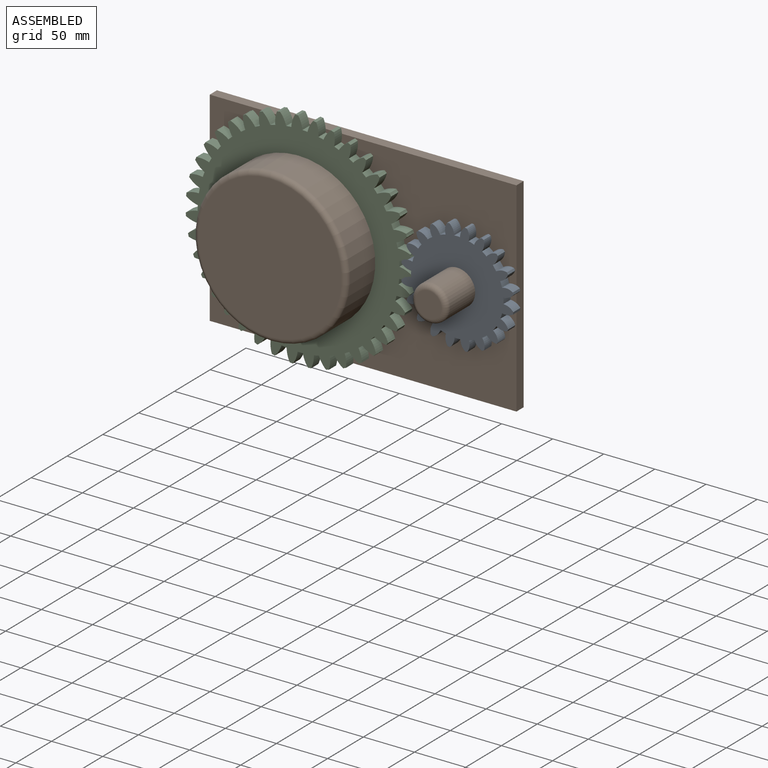
[diagram: assembled view]
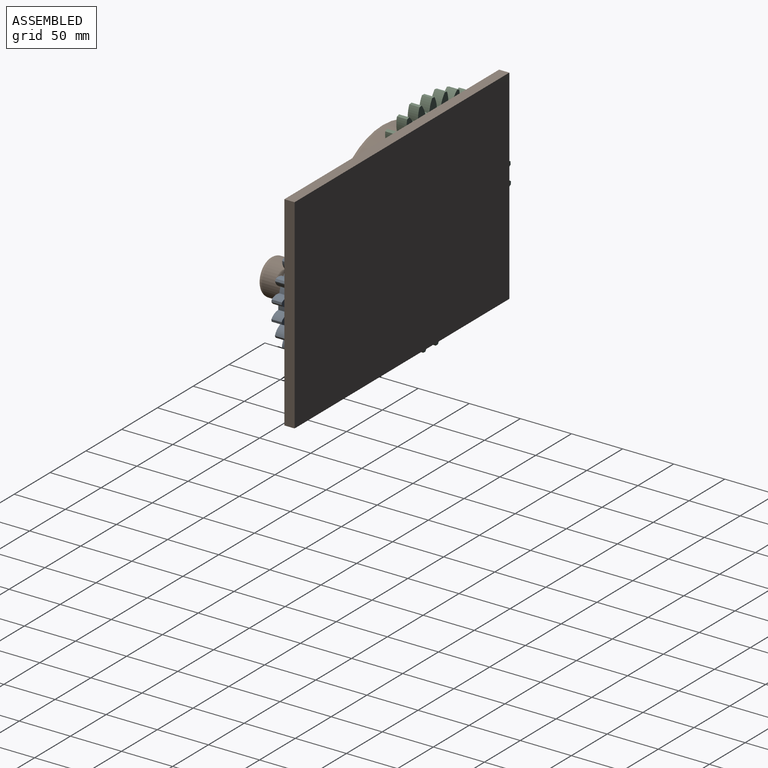
[diagram: assembled view, second angle]
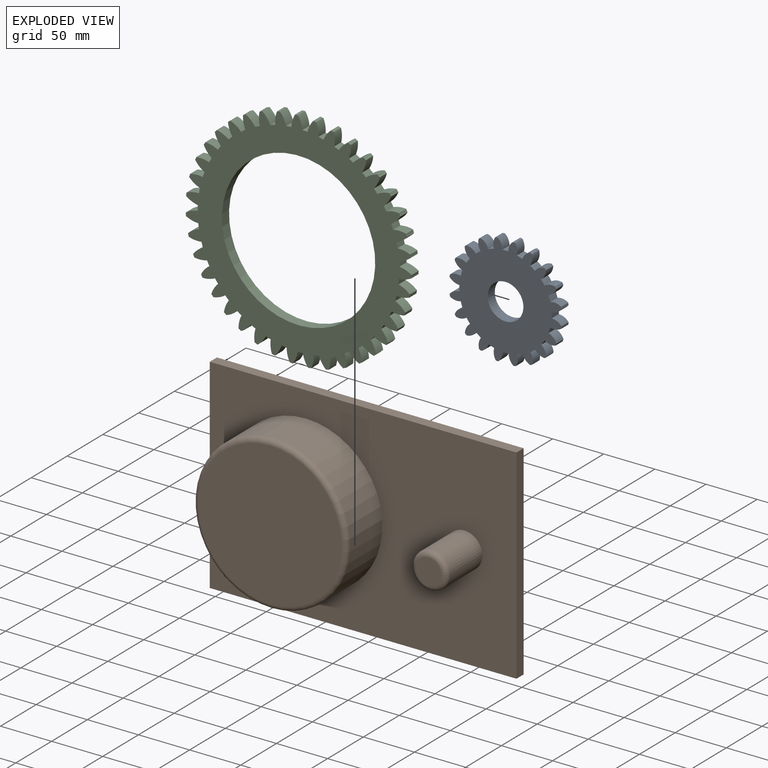
[diagram: exploded view]
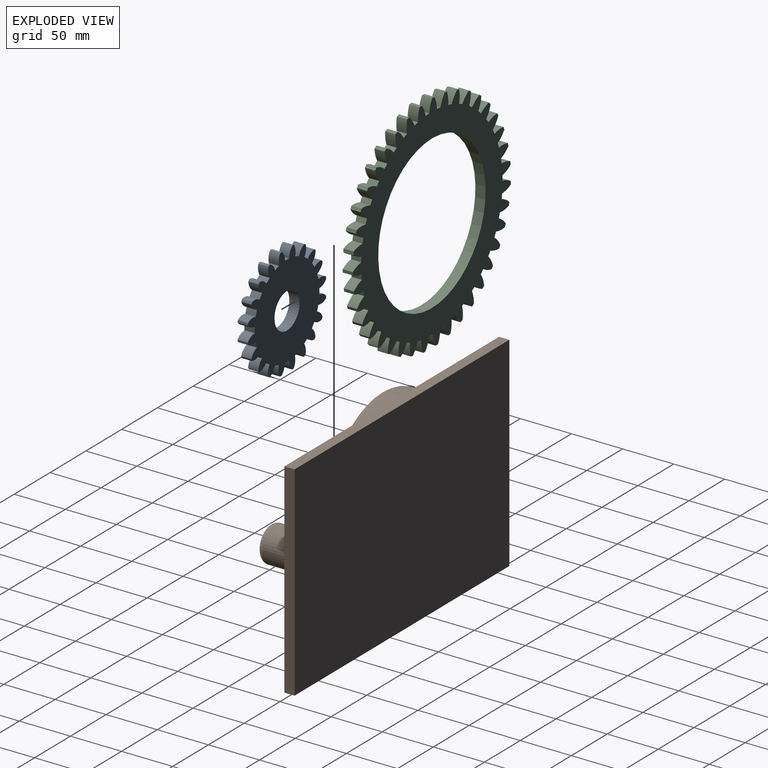
[diagram: exploded view, second angle]
ASSEMBLY  parts=3 mates=2
PART A: 123 faces, bbox 110.3x10x110.3 mm
  f0: cylinder r=45.23mm len=10mm, axis (0,1,0), area 56.7mm2, adj f24,f25,f26,f76
  f1: cylinder r=45.23mm len=10mm, axis (0,1,0), area 56.7mm2, adj f25,f26,f71,f75
  f2: cylinder r=45.23mm len=10mm, axis (0,1,0), area 56.7mm2, adj f25,f26,f66,f70
  f3: cylinder r=45.23mm len=10mm, axis (0,1,0), area 56.7mm2, adj f25,f26,f61,f65
  f4: cylinder r=45.23mm len=10mm, axis (0,1,0), area 56.7mm2, adj f25,f26,f56,f60
  f5: cylinder r=45.23mm len=10mm, axis (0,1,0), area 56.7mm2, adj f25,f26,f51,f55
  f6: cylinder r=45.23mm len=10mm, axis (0,1,0), area 56.7mm2, adj f25,f26,f46,f50
  f7: cylinder r=45.23mm len=10mm, axis (0,1,0), area 56.7mm2, adj f25,f26,f41,f45
  f8: cylinder r=45.23mm len=10mm, axis (0,1,0), area 56.7mm2, adj f25,f26,f36,f40
  f9: cylinder r=45.23mm len=10mm, axis (0,1,0), area 56.7mm2, adj f25,f26,f31,f35
  f10: cylinder r=45.23mm len=10mm, axis (0,1,0), area 56.7mm2, adj f25,f26,f30,f117
  f11: cylinder r=45.23mm len=10mm, axis (0,1,0), area 56.7mm2, adj f25,f26,f116,f121
  f12: cylinder r=45.23mm len=10mm, axis (0,1,0), area 56.7mm2, adj f25,f26,f111,f115
  f13: cylinder r=45.23mm len=10mm, axis (0,1,0), area 56.7mm2, adj f25,f26,f106,f110
  f14: cylinder r=45.23mm len=10mm, axis (0,1,0), area 56.7mm2, adj f25,f26,f101,f105
  f15: cylinder r=45.23mm len=10mm, axis (0,1,0), area 56.7mm2, adj f25,f26,f96,f100
  f16: cylinder r=45.23mm len=10mm, axis (0,1,0), area 56.7mm2, adj f25,f26,f91,f95
  f17: cylinder r=45.23mm len=10mm, axis (0,1,0), area 56.7mm2, adj f25,f26,f86,f90
  f18: cylinder r=45.23mm len=10mm, axis (0,1,0), area 56.7mm2, adj f25,f26,f80,f85
  f19: cylinder r=45.23mm len=10mm, axis (0,1,0), area 56.7mm2, adj f20,f25,f26,f81
  f20: cylinder r=13.84mm len=10mm, axis (0,1,0), area 51.1mm2, adj f19,f21,f25,f26
  f21: cylinder r=11.64mm len=10mm, axis (0,1,0), area 59.3mm2, adj f20,f22,f25,f26
  f22: cylinder r=505.79mm len=10mm, axis (0,1,0), area 22.3mm2, adj f21,f23,f25,f26
  f23: cylinder r=11.64mm len=10mm, axis (0,1,0), area 59.3mm2, adj f22,f24,f25,f26
  f24: cylinder r=13.84mm len=10mm, axis (0,1,0), area 51.1mm2, adj f0,f23,f25,f26
  f25: plane 110.31x110.31mm, normal (0,-1,0), area 6884mm2, adj f0,f1,f2,f3,f4,f5,f6,f7
  f26: plane 110.31x110.31mm, normal (0,1,0), area 6884mm2, adj f0,f1,f2,f3,f4,f5,f6,f7
  f27: cylinder r=11.64mm len=10mm, axis (0,1,0), area 59.3mm2, adj f25,f26,f28,f31
  f28: cylinder r=505.79mm len=10mm, axis (0,1,0), area 22.3mm2, adj f25,f26,f27,f29
  f29: cylinder r=11.64mm len=10mm, axis (0,1,0), area 59.3mm2, adj f25,f26,f28,f30
  f30: cylinder r=13.84mm len=10mm, axis (0,1,0), area 51.1mm2, adj f10,f25,f26,f29
  f31: cylinder r=13.84mm len=10mm, axis (0,1,0), area 51.1mm2, adj f9,f25,f26,f27
  f32: cylinder r=11.64mm len=10mm, axis (0,1,0), area 59.3mm2, adj f25,f26,f33,f36
  f33: cylinder r=505.79mm len=10mm, axis (0,1,0), area 22.3mm2, adj f25,f26,f32,f34
  f34: cylinder r=11.64mm len=10mm, axis (0,1,0), area 59.3mm2, adj f25,f26,f33,f35
  f35: cylinder r=13.84mm len=10mm, axis (0,1,0), area 51.1mm2, adj f9,f25,f26,f34
  f36: cylinder r=13.84mm len=10mm, axis (0,1,0), area 51.1mm2, adj f8,f25,f26,f32
  f37: cylinder r=11.64mm len=10mm, axis (0,1,0), area 59.3mm2, adj f25,f26,f38,f41
  f38: cylinder r=505.79mm len=10mm, axis (0,1,0), area 22.3mm2, adj f25,f26,f37,f39
  f39: cylinder r=11.64mm len=10mm, axis (0,1,0), area 59.3mm2, adj f25,f26,f38,f40
  f40: cylinder r=13.84mm len=10mm, axis (0,1,0), area 51.1mm2, adj f8,f25,f26,f39
  f41: cylinder r=13.84mm len=10mm, axis (0,1,0), area 51.1mm2, adj f7,f25,f26,f37
  f42: cylinder r=11.64mm len=10mm, axis (0,1,0), area 59.3mm2, adj f25,f26,f43,f46
  f43: cylinder r=505.79mm len=10mm, axis (0,1,0), area 22.3mm2, adj f25,f26,f42,f44
  f44: cylinder r=11.64mm len=10mm, axis (0,1,0), area 59.3mm2, adj f25,f26,f43,f45
  f45: cylinder r=13.84mm len=10mm, axis (0,1,0), area 51.1mm2, adj f7,f25,f26,f44
  f46: cylinder r=13.84mm len=10mm, axis (0,1,0), area 51.1mm2, adj f6,f25,f26,f42
  f47: cylinder r=11.64mm len=10mm, axis (0,1,0), area 59.3mm2, adj f25,f26,f48,f51
  f48: cylinder r=505.79mm len=10mm, axis (0,1,0), area 22.3mm2, adj f25,f26,f47,f49
  f49: cylinder r=11.64mm len=10mm, axis (0,1,0), area 59.3mm2, adj f25,f26,f48,f50
  f50: cylinder r=13.84mm len=10mm, axis (0,1,0), area 51.1mm2, adj f6,f25,f26,f49
  f51: cylinder r=13.84mm len=10mm, axis (0,1,0), area 51.1mm2, adj f5,f25,f26,f47
  f52: cylinder r=11.64mm len=10mm, axis (0,1,0), area 59.3mm2, adj f25,f26,f53,f56
  f53: cylinder r=505.79mm len=10mm, axis (0,1,0), area 22.3mm2, adj f25,f26,f52,f54
  f54: cylinder r=11.64mm len=10mm, axis (0,1,0), area 59.3mm2, adj f25,f26,f53,f55
  f55: cylinder r=13.84mm len=10mm, axis (0,1,0), area 51.1mm2, adj f5,f25,f26,f54
  f56: cylinder r=13.84mm len=10mm, axis (0,1,0), area 51.1mm2, adj f4,f25,f26,f52
  f57: cylinder r=11.64mm len=10mm, axis (0,1,0), area 59.3mm2, adj f25,f26,f58,f61
  f58: cylinder r=505.79mm len=10mm, axis (0,1,0), area 22.3mm2, adj f25,f26,f57,f59
  f59: cylinder r=11.64mm len=10mm, axis (0,1,0), area 59.3mm2, adj f25,f26,f58,f60
  f60: cylinder r=13.84mm len=10mm, axis (0,1,0), area 51.1mm2, adj f4,f25,f26,f59
  f61: cylinder r=13.84mm len=10mm, axis (0,1,0), area 51.1mm2, adj f3,f25,f26,f57
  f62: cylinder r=11.64mm len=10mm, axis (0,1,0), area 59.3mm2, adj f25,f26,f63,f66
  f63: cylinder r=505.79mm len=10mm, axis (0,1,0), area 22.3mm2, adj f25,f26,f62,f64
  f64: cylinder r=11.64mm len=10mm, axis (0,1,0), area 59.3mm2, adj f25,f26,f63,f65
  f65: cylinder r=13.84mm len=10mm, axis (0,1,0), area 51.1mm2, adj f3,f25,f26,f64
  f66: cylinder r=13.84mm len=10mm, axis (0,1,0), area 51.1mm2, adj f2,f25,f26,f62
  f67: cylinder r=11.64mm len=10mm, axis (0,1,0), area 59.3mm2, adj f25,f26,f68,f71
  f68: cylinder r=505.79mm len=10mm, axis (0,1,0), area 22.3mm2, adj f25,f26,f67,f69
  f69: cylinder r=11.64mm len=10mm, axis (0,1,0), area 59.3mm2, adj f25,f26,f68,f70
  f70: cylinder r=13.84mm len=10mm, axis (0,1,0), area 51.1mm2, adj f2,f25,f26,f69
  f71: cylinder r=13.84mm len=10mm, axis (0,1,0), area 51.1mm2, adj f1,f25,f26,f67
  f72: cylinder r=11.64mm len=10mm, axis (0,1,0), area 59.3mm2, adj f25,f26,f73,f76
  f73: cylinder r=505.79mm len=10mm, axis (0,1,0), area 22.3mm2, adj f25,f26,f72,f74
  f74: cylinder r=11.64mm len=10mm, axis (0,1,0), area 59.3mm2, adj f25,f26,f73,f75
  f75: cylinder r=13.84mm len=10mm, axis (0,1,0), area 51.1mm2, adj f1,f25,f26,f74
  f76: cylinder r=13.84mm len=10mm, axis (0,1,0), area 51.1mm2, adj f0,f25,f26,f72
  f77: cylinder r=11.64mm len=10mm, axis (0,1,0), area 59.3mm2, adj f25,f26,f78,f80
  f78: cylinder r=505.79mm len=10mm, axis (0,1,0), area 22.3mm2, adj f25,f26,f77,f79
  f79: cylinder r=11.64mm len=10mm, axis (0,1,0), area 59.3mm2, adj f25,f26,f78,f81
  f80: cylinder r=13.84mm len=10mm, axis (0,1,0), area 51.1mm2, adj f18,f25,f26,f77
  f81: cylinder r=13.84mm len=10mm, axis (0,1,0), area 51.1mm2, adj f19,f25,f26,f79
  f82: cylinder r=11.64mm len=10mm, axis (0,1,0), area 59.3mm2, adj f25,f26,f83,f86
  f83: cylinder r=505.79mm len=10mm, axis (0,1,0), area 22.3mm2, adj f25,f26,f82,f84
  f84: cylinder r=11.64mm len=10mm, axis (0,1,0), area 59.3mm2, adj f25,f26,f83,f85
  f85: cylinder r=13.84mm len=10mm, axis (0,1,0), area 51.1mm2, adj f18,f25,f26,f84
  f86: cylinder r=13.84mm len=10mm, axis (0,1,0), area 51.1mm2, adj f17,f25,f26,f82
  f87: cylinder r=11.64mm len=10mm, axis (0,1,0), area 59.3mm2, adj f25,f26,f88,f91
  f88: cylinder r=505.79mm len=10mm, axis (0,1,0), area 22.3mm2, adj f25,f26,f87,f89
  f89: cylinder r=11.64mm len=10mm, axis (0,1,0), area 59.3mm2, adj f25,f26,f88,f90
  f90: cylinder r=13.84mm len=10mm, axis (0,1,0), area 51.1mm2, adj f17,f25,f26,f89
  f91: cylinder r=13.84mm len=10mm, axis (0,1,0), area 51.1mm2, adj f16,f25,f26,f87
  f92: cylinder r=11.64mm len=10mm, axis (0,1,0), area 59.3mm2, adj f25,f26,f93,f96
  f93: cylinder r=505.79mm len=10mm, axis (0,1,0), area 22.3mm2, adj f25,f26,f92,f94
  f94: cylinder r=11.64mm len=10mm, axis (0,1,0), area 59.3mm2, adj f25,f26,f93,f95
  f95: cylinder r=13.84mm len=10mm, axis (0,1,0), area 51.1mm2, adj f16,f25,f26,f94
  f96: cylinder r=13.84mm len=10mm, axis (0,1,0), area 51.1mm2, adj f15,f25,f26,f92
  f97: cylinder r=11.64mm len=10mm, axis (0,1,0), area 59.3mm2, adj f25,f26,f98,f101
  f98: cylinder r=505.79mm len=10mm, axis (0,1,0), area 22.3mm2, adj f25,f26,f97,f99
  f99: cylinder r=11.64mm len=10mm, axis (0,1,0), area 59.3mm2, adj f25,f26,f98,f100
  f100: cylinder r=13.84mm len=10mm, axis (0,1,0), area 51.1mm2, adj f15,f25,f26,f99
  f101: cylinder r=13.84mm len=10mm, axis (0,1,0), area 51.1mm2, adj f14,f25,f26,f97
  f102: cylinder r=11.64mm len=10mm, axis (0,1,0), area 59.3mm2, adj f25,f26,f103,f106
  f103: cylinder r=505.79mm len=10mm, axis (0,1,0), area 22.3mm2, adj f25,f26,f102,f104
  f104: cylinder r=11.64mm len=10mm, axis (0,1,0), area 59.3mm2, adj f25,f26,f103,f105
  f105: cylinder r=13.84mm len=10mm, axis (0,1,0), area 51.1mm2, adj f14,f25,f26,f104
  f106: cylinder r=13.84mm len=10mm, axis (0,1,0), area 51.1mm2, adj f13,f25,f26,f102
  f107: cylinder r=11.64mm len=10mm, axis (0,1,0), area 59.3mm2, adj f25,f26,f108,f111
  f108: cylinder r=505.79mm len=10mm, axis (0,1,0), area 22.3mm2, adj f25,f26,f107,f109
  f109: cylinder r=11.64mm len=10mm, axis (0,1,0), area 59.3mm2, adj f25,f26,f108,f110
  f110: cylinder r=13.84mm len=10mm, axis (0,1,0), area 51.1mm2, adj f13,f25,f26,f109
  f111: cylinder r=13.84mm len=10mm, axis (0,1,0), area 51.1mm2, adj f12,f25,f26,f107
  f112: cylinder r=11.64mm len=10mm, axis (0,1,0), area 59.3mm2, adj f25,f26,f113,f116
  f113: cylinder r=505.79mm len=10mm, axis (0,1,0), area 22.3mm2, adj f25,f26,f112,f114
  f114: cylinder r=11.64mm len=10mm, axis (0,1,0), area 59.3mm2, adj f25,f26,f113,f115
  f115: cylinder r=13.84mm len=10mm, axis (0,1,0), area 51.1mm2, adj f12,f25,f26,f114
  f116: cylinder r=13.84mm len=10mm, axis (0,1,0), area 51.1mm2, adj f11,f25,f26,f112
  f117: cylinder r=13.84mm len=10mm, axis (0,1,0), area 51.1mm2, adj f10,f25,f26,f118
  f118: cylinder r=11.64mm len=10mm, axis (0,1,0), area 59.3mm2, adj f25,f26,f117,f119
  f119: cylinder r=505.79mm len=10mm, axis (0,1,0), area 22.3mm2, adj f25,f26,f118,f120
  f120: cylinder r=11.64mm len=10mm, axis (0,1,0), area 59.3mm2, adj f25,f26,f119,f121
  f121: cylinder r=13.84mm len=10mm, axis (0,1,0), area 51.1mm2, adj f11,f25,f26,f120
  f122: cylinder r=17.5mm len=35mm, axis (0,1,0), area 1099.6mm2, adj f25,f26
PART B: 12 faces, bbox 300x60x200 mm
  f0: plane 200x10mm, normal (1,0,0), area 2000mm2, adj f1,f3,f4,f5
  f1: plane 300x10mm, normal (0,0,1), area 3000mm2, adj f0,f2,f4,f5
  f2: plane 200x10mm, normal (-1,0,0), area 2000mm2, adj f1,f3,f4,f5
  f3: plane 300x10mm, normal (0,0,-1), area 3000mm2, adj f0,f2,f4,f5
  f4: plane 300x200mm, normal (0,-1,0), area 41366.4mm2, adj f0,f1,f2,f3,f6,f8
  f5: plane 300x200mm, normal (0,1,0), area 60000mm2, adj f0,f1,f2,f3
  f6: cylinder r=75mm len=150mm, axis (0,1,0), area 21205.8mm2, adj f4,f11
  f7: plane 140x140mm, normal (0,-1,0), area 15393.8mm2, adj f11
  f8: cylinder r=17.5mm len=45mm, axis (0,1,0), area 4948mm2, adj f4,f10
  f9: plane 25x25mm, normal (0,-1,0), area 490.9mm2, adj f10
  f10: torus R=12.5mm, axis (0,-1,0), area 773.9mm2, adj f8,f9
  f11: torus R=70mm, axis (0,-1,0), area 3611.4mm2, adj f6,f7
PART C: 237 faces, bbox 220.7x220.9x10 mm
  f0: cylinder r=98.67mm len=10mm, axis (0,0,1), area 50.1mm2, adj f38,f39,f45,f91
  f1: cylinder r=98.67mm len=10mm, axis (0,0,1), area 50.1mm2, adj f38,f45,f86,f90
  f2: cylinder r=98.67mm len=10mm, axis (0,0,1), area 50.1mm2, adj f38,f45,f81,f85
  f3: cylinder r=98.67mm len=10mm, axis (0,0,1), area 50.1mm2, adj f38,f45,f76,f80
  f4: cylinder r=98.67mm len=10mm, axis (0,0,1), area 50.1mm2, adj f38,f45,f71,f75
  f5: cylinder r=98.67mm len=10mm, axis (0,0,1), area 50.1mm2, adj f38,f45,f66,f70
  f6: cylinder r=98.67mm len=10mm, axis (0,0,1), area 50.1mm2, adj f38,f45,f61,f65
  f7: cylinder r=98.67mm len=10mm, axis (0,0,1), area 50.1mm2, adj f38,f45,f56,f60
  f8: cylinder r=98.67mm len=10mm, axis (0,0,1), area 50.1mm2, adj f38,f45,f51,f55
  f9: cylinder r=98.67mm len=10mm, axis (0,0,1), area 50.1mm2, adj f38,f45,f50,f236
  f10: cylinder r=98.67mm len=10mm, axis (0,0,1), area 50.1mm2, adj f38,f45,f231,f232
  f11: cylinder r=98.67mm len=10mm, axis (0,0,1), area 50.1mm2, adj f38,f45,f226,f230
  f12: cylinder r=98.67mm len=10mm, axis (0,0,1), area 50.1mm2, adj f38,f45,f221,f225
  f13: cylinder r=98.67mm len=10mm, axis (0,0,1), area 50.1mm2, adj f38,f45,f216,f220
  f14: cylinder r=98.67mm len=10mm, axis (0,0,1), area 50.1mm2, adj f38,f45,f211,f215
  f15: cylinder r=98.67mm len=10mm, axis (0,0,1), area 50.1mm2, adj f38,f45,f206,f210
  f16: cylinder r=98.67mm len=10mm, axis (0,0,1), area 50.1mm2, adj f38,f45,f201,f205
  f17: cylinder r=98.67mm len=10mm, axis (0,0,1), area 50.1mm2, adj f38,f45,f196,f200
  f18: cylinder r=98.67mm len=10mm, axis (0,0,1), area 50.1mm2, adj f38,f45,f191,f195
  f19: cylinder r=98.67mm len=10mm, axis (0,0,1), area 50.1mm2, adj f38,f45,f186,f190
  f20: cylinder r=98.67mm len=10mm, axis (0,0,1), area 50.1mm2, adj f38,f45,f181,f185
  f21: cylinder r=98.67mm len=10mm, axis (0,0,1), area 50.1mm2, adj f38,f45,f176,f180
  f22: cylinder r=98.67mm len=10mm, axis (0,0,1), area 50.1mm2, adj f38,f45,f171,f175
  f23: cylinder r=98.67mm len=10mm, axis (0,0,1), area 50.1mm2, adj f38,f45,f166,f170
  f24: cylinder r=98.67mm len=10mm, axis (0,0,1), area 50.1mm2, adj f38,f45,f161,f165
  f25: cylinder r=98.67mm len=10mm, axis (0,0,1), area 50.1mm2, adj f38,f45,f156,f160
  f26: cylinder r=98.67mm len=10mm, axis (0,0,1), area 50.1mm2, adj f38,f45,f151,f155
  f27: cylinder r=98.67mm len=10mm, axis (0,0,1), area 50.1mm2, adj f38,f45,f146,f150
  f28: cylinder r=98.67mm len=10mm, axis (0,0,1), area 50.1mm2, adj f38,f45,f141,f145
  f29: cylinder r=98.67mm len=10mm, axis (0,0,1), area 50.1mm2, adj f38,f45,f136,f140
  f30: cylinder r=98.67mm len=10mm, axis (0,0,1), area 50.1mm2, adj f38,f45,f131,f135
  f31: cylinder r=98.67mm len=10mm, axis (0,0,1), area 50.1mm2, adj f38,f45,f126,f130
  f32: cylinder r=98.67mm len=10mm, axis (0,0,1), area 50.1mm2, adj f38,f45,f121,f125
  f33: cylinder r=98.67mm len=10mm, axis (0,0,1), area 50.1mm2, adj f38,f45,f116,f120
  f34: cylinder r=98.67mm len=10mm, axis (0,0,1), area 50.1mm2, adj f38,f45,f111,f115
  f35: cylinder r=98.67mm len=10mm, axis (0,0,1), area 50.1mm2, adj f38,f45,f106,f110
  f36: cylinder r=98.67mm len=10mm, axis (0,0,1), area 50.1mm2, adj f38,f45,f101,f105
  f37: cylinder r=98.67mm len=10mm, axis (0,0,1), area 50.1mm2, adj f38,f45,f95,f100
  f38: plane 220.91x220.74mm, normal (0,0,-1), area 16590.7mm2, adj f0,f1,f2,f3,f4,f5,f6,f7
  f39: cylinder r=27.99mm len=10mm, axis (0,0,1), area 65.5mm2, adj f0,f38,f40,f45
  f40: cylinder r=24.63mm len=10mm, axis (0,0,1), area 61.9mm2, adj f38,f39,f41,f45
  f41: cylinder r=11.88mm len=10mm, axis (0,0,1), area 29.4mm2, adj f38,f40,f42,f45
  f42: cylinder r=24.63mm len=10mm, axis (0,0,1), area 61.8mm2, adj f38,f41,f43,f45
  f43: cylinder r=27.99mm len=10mm, axis (0,0,1), area 65.5mm2, adj f38,f42,f44,f45
  f44: cylinder r=98.67mm len=10mm, axis (0,0,1), area 50.1mm2, adj f38,f43,f45,f96
  f45: plane 220.91x220.74mm, normal (0,0,1), area 16590.7mm2, adj f0,f1,f2,f3,f4,f5,f6,f7
  f46: cylinder r=75mm len=150mm, axis (0,0,1), area 4712.4mm2, adj f38,f45
  f47: cylinder r=24.63mm len=10mm, axis (0,0,1), area 61.8mm2, adj f38,f45,f48,f51
  f48: cylinder r=11.88mm len=10mm, axis (0,0,1), area 29.4mm2, adj f38,f45,f47,f49
  f49: cylinder r=24.63mm len=10mm, axis (0,0,1), area 61.9mm2, adj f38,f45,f48,f50
  f50: cylinder r=27.99mm len=10mm, axis (0,0,1), area 65.5mm2, adj f9,f38,f45,f49
  f51: cylinder r=27.99mm len=10mm, axis (0,0,1), area 65.5mm2, adj f8,f38,f45,f47
  f52: cylinder r=24.63mm len=10mm, axis (0,0,1), area 61.8mm2, adj f38,f45,f53,f56
  f53: cylinder r=11.88mm len=10mm, axis (0,0,1), area 29.4mm2, adj f38,f45,f52,f54
  f54: cylinder r=24.63mm len=10mm, axis (0,0,1), area 61.9mm2, adj f38,f45,f53,f55
  f55: cylinder r=27.99mm len=10mm, axis (0,0,1), area 65.5mm2, adj f8,f38,f45,f54
  f56: cylinder r=27.99mm len=10mm, axis (0,0,1), area 65.5mm2, adj f7,f38,f45,f52
  f57: cylinder r=24.63mm len=10mm, axis (0,0,1), area 61.8mm2, adj f38,f45,f58,f61
  f58: cylinder r=11.88mm len=10mm, axis (0,0,1), area 29.4mm2, adj f38,f45,f57,f59
  f59: cylinder r=24.63mm len=10mm, axis (0,0,1), area 61.9mm2, adj f38,f45,f58,f60
  f60: cylinder r=27.99mm len=10mm, axis (0,0,1), area 65.5mm2, adj f7,f38,f45,f59
  f61: cylinder r=27.99mm len=10mm, axis (0,0,1), area 65.5mm2, adj f6,f38,f45,f57
  f62: cylinder r=24.63mm len=10mm, axis (0,0,1), area 61.8mm2, adj f38,f45,f63,f66
  f63: cylinder r=11.88mm len=10mm, axis (0,0,1), area 29.4mm2, adj f38,f45,f62,f64
  f64: cylinder r=24.63mm len=10mm, axis (0,0,1), area 61.9mm2, adj f38,f45,f63,f65
  f65: cylinder r=27.99mm len=10mm, axis (0,0,1), area 65.5mm2, adj f6,f38,f45,f64
  f66: cylinder r=27.99mm len=10mm, axis (0,0,1), area 65.5mm2, adj f5,f38,f45,f62
  f67: cylinder r=24.63mm len=10mm, axis (0,0,1), area 61.8mm2, adj f38,f45,f68,f71
  f68: cylinder r=11.88mm len=10mm, axis (0,0,1), area 29.4mm2, adj f38,f45,f67,f69
  f69: cylinder r=24.63mm len=10mm, axis (0,0,1), area 61.9mm2, adj f38,f45,f68,f70
  f70: cylinder r=27.99mm len=10mm, axis (0,0,1), area 65.5mm2, adj f5,f38,f45,f69
  f71: cylinder r=27.99mm len=10mm, axis (0,0,1), area 65.5mm2, adj f4,f38,f45,f67
  f72: cylinder r=24.63mm len=10mm, axis (0,0,1), area 61.8mm2, adj f38,f45,f73,f76
  f73: cylinder r=11.88mm len=10mm, axis (0,0,1), area 29.4mm2, adj f38,f45,f72,f74
  f74: cylinder r=24.63mm len=10mm, axis (0,0,1), area 61.9mm2, adj f38,f45,f73,f75
  f75: cylinder r=27.99mm len=10mm, axis (0,0,1), area 65.5mm2, adj f4,f38,f45,f74
  f76: cylinder r=27.99mm len=10mm, axis (0,0,1), area 65.5mm2, adj f3,f38,f45,f72
  f77: cylinder r=24.63mm len=10mm, axis (0,0,1), area 61.8mm2, adj f38,f45,f78,f81
  f78: cylinder r=11.88mm len=10mm, axis (0,0,1), area 29.4mm2, adj f38,f45,f77,f79
  f79: cylinder r=24.63mm len=10mm, axis (0,0,1), area 61.9mm2, adj f38,f45,f78,f80
  f80: cylinder r=27.99mm len=10mm, axis (0,0,1), area 65.5mm2, adj f3,f38,f45,f79
  f81: cylinder r=27.99mm len=10mm, axis (0,0,1), area 65.5mm2, adj f2,f38,f45,f77
  f82: cylinder r=24.63mm len=10mm, axis (0,0,1), area 61.8mm2, adj f38,f45,f83,f86
  f83: cylinder r=11.88mm len=10mm, axis (0,0,1), area 29.4mm2, adj f38,f45,f82,f84
  f84: cylinder r=24.63mm len=10mm, axis (0,0,1), area 61.9mm2, adj f38,f45,f83,f85
  f85: cylinder r=27.99mm len=10mm, axis (0,0,1), area 65.5mm2, adj f2,f38,f45,f84
  f86: cylinder r=27.99mm len=10mm, axis (0,0,1), area 65.5mm2, adj f1,f38,f45,f82
  f87: cylinder r=24.63mm len=10mm, axis (0,0,1), area 61.8mm2, adj f38,f45,f88,f91
  f88: cylinder r=11.88mm len=10mm, axis (0,0,1), area 29.4mm2, adj f38,f45,f87,f89
  f89: cylinder r=24.63mm len=10mm, axis (0,0,1), area 61.9mm2, adj f38,f45,f88,f90
  f90: cylinder r=27.99mm len=10mm, axis (0,0,1), area 65.5mm2, adj f1,f38,f45,f89
  f91: cylinder r=27.99mm len=10mm, axis (0,0,1), area 65.5mm2, adj f0,f38,f45,f87
  f92: cylinder r=24.63mm len=10mm, axis (0,0,1), area 61.8mm2, adj f38,f45,f93,f95
  f93: cylinder r=11.88mm len=10mm, axis (0,0,1), area 29.4mm2, adj f38,f45,f92,f94
  f94: cylinder r=24.63mm len=10mm, axis (0,0,1), area 61.9mm2, adj f38,f45,f93,f96
  f95: cylinder r=27.99mm len=10mm, axis (0,0,1), area 65.5mm2, adj f37,f38,f45,f92
  f96: cylinder r=27.99mm len=10mm, axis (0,0,1), area 65.5mm2, adj f38,f44,f45,f94
  f97: cylinder r=24.63mm len=10mm, axis (0,0,1), area 61.8mm2, adj f38,f45,f98,f101
  f98: cylinder r=11.88mm len=10mm, axis (0,0,1), area 29.4mm2, adj f38,f45,f97,f99
  f99: cylinder r=24.63mm len=10mm, axis (0,0,1), area 61.9mm2, adj f38,f45,f98,f100
  f100: cylinder r=27.99mm len=10mm, axis (0,0,1), area 65.5mm2, adj f37,f38,f45,f99
  f101: cylinder r=27.99mm len=10mm, axis (0,0,1), area 65.5mm2, adj f36,f38,f45,f97
  f102: cylinder r=24.63mm len=10mm, axis (0,0,1), area 61.8mm2, adj f38,f45,f103,f106
  f103: cylinder r=11.88mm len=10mm, axis (0,0,1), area 29.4mm2, adj f38,f45,f102,f104
  f104: cylinder r=24.63mm len=10mm, axis (0,0,1), area 61.9mm2, adj f38,f45,f103,f105
  f105: cylinder r=27.99mm len=10mm, axis (0,0,1), area 65.5mm2, adj f36,f38,f45,f104
  f106: cylinder r=27.99mm len=10mm, axis (0,0,1), area 65.5mm2, adj f35,f38,f45,f102
  f107: cylinder r=24.63mm len=10mm, axis (0,0,1), area 61.8mm2, adj f38,f45,f108,f111
  f108: cylinder r=11.88mm len=10mm, axis (0,0,1), area 29.4mm2, adj f38,f45,f107,f109
  f109: cylinder r=24.63mm len=10mm, axis (0,0,1), area 61.9mm2, adj f38,f45,f108,f110
  f110: cylinder r=27.99mm len=10mm, axis (0,0,1), area 65.5mm2, adj f35,f38,f45,f109
  f111: cylinder r=27.99mm len=10mm, axis (0,0,1), area 65.5mm2, adj f34,f38,f45,f107
  f112: cylinder r=24.63mm len=10mm, axis (0,0,1), area 61.8mm2, adj f38,f45,f113,f116
  f113: cylinder r=11.88mm len=10mm, axis (0,0,1), area 29.4mm2, adj f38,f45,f112,f114
  f114: cylinder r=24.63mm len=10mm, axis (0,0,1), area 61.9mm2, adj f38,f45,f113,f115
  f115: cylinder r=27.99mm len=10mm, axis (0,0,1), area 65.5mm2, adj f34,f38,f45,f114
  f116: cylinder r=27.99mm len=10mm, axis (0,0,1), area 65.5mm2, adj f33,f38,f45,f112
  f117: cylinder r=24.63mm len=10mm, axis (0,0,1), area 61.8mm2, adj f38,f45,f118,f121
  f118: cylinder r=11.88mm len=10mm, axis (0,0,1), area 29.4mm2, adj f38,f45,f117,f119
  f119: cylinder r=24.63mm len=10mm, axis (0,0,1), area 61.9mm2, adj f38,f45,f118,f120
  f120: cylinder r=27.99mm len=10mm, axis (0,0,1), area 65.5mm2, adj f33,f38,f45,f119
  f121: cylinder r=27.99mm len=10mm, axis (0,0,1), area 65.5mm2, adj f32,f38,f45,f117
  f122: cylinder r=24.63mm len=10mm, axis (0,0,1), area 61.8mm2, adj f38,f45,f123,f126
  f123: cylinder r=11.88mm len=10mm, axis (0,0,1), area 29.4mm2, adj f38,f45,f122,f124
  f124: cylinder r=24.63mm len=10mm, axis (0,0,1), area 61.9mm2, adj f38,f45,f123,f125
  f125: cylinder r=27.99mm len=10mm, axis (0,0,1), area 65.5mm2, adj f32,f38,f45,f124
  f126: cylinder r=27.99mm len=10mm, axis (0,0,1), area 65.5mm2, adj f31,f38,f45,f122
  f127: cylinder r=24.63mm len=10mm, axis (0,0,1), area 61.8mm2, adj f38,f45,f128,f131
  f128: cylinder r=11.88mm len=10mm, axis (0,0,1), area 29.4mm2, adj f38,f45,f127,f129
  f129: cylinder r=24.63mm len=10mm, axis (0,0,1), area 61.9mm2, adj f38,f45,f128,f130
  f130: cylinder r=27.99mm len=10mm, axis (0,0,1), area 65.5mm2, adj f31,f38,f45,f129
  f131: cylinder r=27.99mm len=10mm, axis (0,0,1), area 65.5mm2, adj f30,f38,f45,f127
  f132: cylinder r=24.63mm len=10mm, axis (0,0,1), area 61.8mm2, adj f38,f45,f133,f136
  f133: cylinder r=11.88mm len=10mm, axis (0,0,1), area 29.4mm2, adj f38,f45,f132,f134
  f134: cylinder r=24.63mm len=10mm, axis (0,0,1), area 61.9mm2, adj f38,f45,f133,f135
  f135: cylinder r=27.99mm len=10mm, axis (0,0,1), area 65.5mm2, adj f30,f38,f45,f134
  f136: cylinder r=27.99mm len=10mm, axis (0,0,1), area 65.5mm2, adj f29,f38,f45,f132
  f137: cylinder r=24.63mm len=10mm, axis (0,0,1), area 61.8mm2, adj f38,f45,f138,f141
  f138: cylinder r=11.88mm len=10mm, axis (0,0,1), area 29.4mm2, adj f38,f45,f137,f139
  f139: cylinder r=24.63mm len=10mm, axis (0,0,1), area 61.9mm2, adj f38,f45,f138,f140
  f140: cylinder r=27.99mm len=10mm, axis (0,0,1), area 65.5mm2, adj f29,f38,f45,f139
  f141: cylinder r=27.99mm len=10mm, axis (0,0,1), area 65.5mm2, adj f28,f38,f45,f137
  f142: cylinder r=24.63mm len=10mm, axis (0,0,1), area 61.8mm2, adj f38,f45,f143,f146
  f143: cylinder r=11.88mm len=10mm, axis (0,0,1), area 29.4mm2, adj f38,f45,f142,f144
  f144: cylinder r=24.63mm len=10mm, axis (0,0,1), area 61.9mm2, adj f38,f45,f143,f145
  f145: cylinder r=27.99mm len=10mm, axis (0,0,1), area 65.5mm2, adj f28,f38,f45,f144
  f146: cylinder r=27.99mm len=10mm, axis (0,0,1), area 65.5mm2, adj f27,f38,f45,f142
  f147: cylinder r=24.63mm len=10mm, axis (0,0,1), area 61.8mm2, adj f38,f45,f148,f151
  f148: cylinder r=11.88mm len=10mm, axis (0,0,1), area 29.4mm2, adj f38,f45,f147,f149
  f149: cylinder r=24.63mm len=10mm, axis (0,0,1), area 61.9mm2, adj f38,f45,f148,f150
  f150: cylinder r=27.99mm len=10mm, axis (0,0,1), area 65.5mm2, adj f27,f38,f45,f149
  f151: cylinder r=27.99mm len=10mm, axis (0,0,1), area 65.5mm2, adj f26,f38,f45,f147
  f152: cylinder r=24.63mm len=10mm, axis (0,0,1), area 61.8mm2, adj f38,f45,f153,f156
  f153: cylinder r=11.88mm len=10mm, axis (0,0,1), area 29.4mm2, adj f38,f45,f152,f154
  f154: cylinder r=24.63mm len=10mm, axis (0,0,1), area 61.9mm2, adj f38,f45,f153,f155
  f155: cylinder r=27.99mm len=10mm, axis (0,0,1), area 65.5mm2, adj f26,f38,f45,f154
  f156: cylinder r=27.99mm len=10mm, axis (0,0,1), area 65.5mm2, adj f25,f38,f45,f152
  f157: cylinder r=24.63mm len=10mm, axis (0,0,1), area 61.8mm2, adj f38,f45,f158,f161
  f158: cylinder r=11.88mm len=10mm, axis (0,0,1), area 29.4mm2, adj f38,f45,f157,f159
  f159: cylinder r=24.63mm len=10mm, axis (0,0,1), area 61.9mm2, adj f38,f45,f158,f160
  f160: cylinder r=27.99mm len=10mm, axis (0,0,1), area 65.5mm2, adj f25,f38,f45,f159
  f161: cylinder r=27.99mm len=10mm, axis (0,0,1), area 65.5mm2, adj f24,f38,f45,f157
  f162: cylinder r=24.63mm len=10mm, axis (0,0,1), area 61.8mm2, adj f38,f45,f163,f166
  f163: cylinder r=11.88mm len=10mm, axis (0,0,1), area 29.4mm2, adj f38,f45,f162,f164
  f164: cylinder r=24.63mm len=10mm, axis (0,0,1), area 61.9mm2, adj f38,f45,f163,f165
  f165: cylinder r=27.99mm len=10mm, axis (0,0,1), area 65.5mm2, adj f24,f38,f45,f164
  f166: cylinder r=27.99mm len=10mm, axis (0,0,1), area 65.5mm2, adj f23,f38,f45,f162
  f167: cylinder r=24.63mm len=10mm, axis (0,0,1), area 61.8mm2, adj f38,f45,f168,f171
  f168: cylinder r=11.88mm len=10mm, axis (0,0,1), area 29.4mm2, adj f38,f45,f167,f169
  f169: cylinder r=24.63mm len=10mm, axis (0,0,1), area 61.9mm2, adj f38,f45,f168,f170
  f170: cylinder r=27.99mm len=10mm, axis (0,0,1), area 65.5mm2, adj f23,f38,f45,f169
  f171: cylinder r=27.99mm len=10mm, axis (0,0,1), area 65.5mm2, adj f22,f38,f45,f167
  f172: cylinder r=24.63mm len=10mm, axis (0,0,1), area 61.8mm2, adj f38,f45,f173,f176
  f173: cylinder r=11.88mm len=10mm, axis (0,0,1), area 29.4mm2, adj f38,f45,f172,f174
  f174: cylinder r=24.63mm len=10mm, axis (0,0,1), area 61.9mm2, adj f38,f45,f173,f175
  f175: cylinder r=27.99mm len=10mm, axis (0,0,1), area 65.5mm2, adj f22,f38,f45,f174
  f176: cylinder r=27.99mm len=10mm, axis (0,0,1), area 65.5mm2, adj f21,f38,f45,f172
  f177: cylinder r=24.63mm len=10mm, axis (0,0,1), area 61.8mm2, adj f38,f45,f178,f181
  f178: cylinder r=11.88mm len=10mm, axis (0,0,1), area 29.4mm2, adj f38,f45,f177,f179
  f179: cylinder r=24.63mm len=10mm, axis (0,0,1), area 61.9mm2, adj f38,f45,f178,f180
  f180: cylinder r=27.99mm len=10mm, axis (0,0,1), area 65.5mm2, adj f21,f38,f45,f179
  f181: cylinder r=27.99mm len=10mm, axis (0,0,1), area 65.5mm2, adj f20,f38,f45,f177
  f182: cylinder r=24.63mm len=10mm, axis (0,0,1), area 61.8mm2, adj f38,f45,f183,f186
  f183: cylinder r=11.88mm len=10mm, axis (0,0,1), area 29.4mm2, adj f38,f45,f182,f184
  f184: cylinder r=24.63mm len=10mm, axis (0,0,1), area 61.9mm2, adj f38,f45,f183,f185
  f185: cylinder r=27.99mm len=10mm, axis (0,0,1), area 65.5mm2, adj f20,f38,f45,f184
  f186: cylinder r=27.99mm len=10mm, axis (0,0,1), area 65.5mm2, adj f19,f38,f45,f182
  f187: cylinder r=24.63mm len=10mm, axis (0,0,1), area 61.8mm2, adj f38,f45,f188,f191
  f188: cylinder r=11.88mm len=10mm, axis (0,0,1), area 29.4mm2, adj f38,f45,f187,f189
  f189: cylinder r=24.63mm len=10mm, axis (0,0,1), area 61.9mm2, adj f38,f45,f188,f190
  f190: cylinder r=27.99mm len=10mm, axis (0,0,1), area 65.5mm2, adj f19,f38,f45,f189
  f191: cylinder r=27.99mm len=10mm, axis (0,0,1), area 65.5mm2, adj f18,f38,f45,f187
  f192: cylinder r=24.63mm len=10mm, axis (0,0,1), area 61.8mm2, adj f38,f45,f193,f196
  f193: cylinder r=11.88mm len=10mm, axis (0,0,1), area 29.4mm2, adj f38,f45,f192,f194
  f194: cylinder r=24.63mm len=10mm, axis (0,0,1), area 61.9mm2, adj f38,f45,f193,f195
  f195: cylinder r=27.99mm len=10mm, axis (0,0,1), area 65.5mm2, adj f18,f38,f45,f194
  f196: cylinder r=27.99mm len=10mm, axis (0,0,1), area 65.5mm2, adj f17,f38,f45,f192
  f197: cylinder r=24.63mm len=10mm, axis (0,0,1), area 61.8mm2, adj f38,f45,f198,f201
  f198: cylinder r=11.88mm len=10mm, axis (0,0,1), area 29.4mm2, adj f38,f45,f197,f199
  f199: cylinder r=24.63mm len=10mm, axis (0,0,1), area 61.9mm2, adj f38,f45,f198,f200
  f200: cylinder r=27.99mm len=10mm, axis (0,0,1), area 65.5mm2, adj f17,f38,f45,f199
  f201: cylinder r=27.99mm len=10mm, axis (0,0,1), area 65.5mm2, adj f16,f38,f45,f197
  f202: cylinder r=24.63mm len=10mm, axis (0,0,1), area 61.8mm2, adj f38,f45,f203,f206
  f203: cylinder r=11.88mm len=10mm, axis (0,0,1), area 29.4mm2, adj f38,f45,f202,f204
  f204: cylinder r=24.63mm len=10mm, axis (0,0,1), area 61.9mm2, adj f38,f45,f203,f205
  f205: cylinder r=27.99mm len=10mm, axis (0,0,1), area 65.5mm2, adj f16,f38,f45,f204
  f206: cylinder r=27.99mm len=10mm, axis (0,0,1), area 65.5mm2, adj f15,f38,f45,f202
  f207: cylinder r=24.63mm len=10mm, axis (0,0,1), area 61.8mm2, adj f38,f45,f208,f211
  f208: cylinder r=11.88mm len=10mm, axis (0,0,1), area 29.4mm2, adj f38,f45,f207,f209
  f209: cylinder r=24.63mm len=10mm, axis (0,0,1), area 61.9mm2, adj f38,f45,f208,f210
  f210: cylinder r=27.99mm len=10mm, axis (0,0,1), area 65.5mm2, adj f15,f38,f45,f209
  f211: cylinder r=27.99mm len=10mm, axis (0,0,1), area 65.5mm2, adj f14,f38,f45,f207
  f212: cylinder r=24.63mm len=10mm, axis (0,0,1), area 61.8mm2, adj f38,f45,f213,f216
  f213: cylinder r=11.88mm len=10mm, axis (0,0,1), area 29.4mm2, adj f38,f45,f212,f214
  f214: cylinder r=24.63mm len=10mm, axis (0,0,1), area 61.9mm2, adj f38,f45,f213,f215
  f215: cylinder r=27.99mm len=10mm, axis (0,0,1), area 65.5mm2, adj f14,f38,f45,f214
  f216: cylinder r=27.99mm len=10mm, axis (0,0,1), area 65.5mm2, adj f13,f38,f45,f212
  f217: cylinder r=24.63mm len=10mm, axis (0,0,1), area 61.8mm2, adj f38,f45,f218,f221
  f218: cylinder r=11.88mm len=10mm, axis (0,0,1), area 29.4mm2, adj f38,f45,f217,f219
  f219: cylinder r=24.63mm len=10mm, axis (0,0,1), area 61.9mm2, adj f38,f45,f218,f220
  f220: cylinder r=27.99mm len=10mm, axis (0,0,1), area 65.5mm2, adj f13,f38,f45,f219
  f221: cylinder r=27.99mm len=10mm, axis (0,0,1), area 65.5mm2, adj f12,f38,f45,f217
  f222: cylinder r=24.63mm len=10mm, axis (0,0,1), area 61.8mm2, adj f38,f45,f223,f226
  f223: cylinder r=11.88mm len=10mm, axis (0,0,1), area 29.4mm2, adj f38,f45,f222,f224
  f224: cylinder r=24.63mm len=10mm, axis (0,0,1), area 61.9mm2, adj f38,f45,f223,f225
  f225: cylinder r=27.99mm len=10mm, axis (0,0,1), area 65.5mm2, adj f12,f38,f45,f224
  f226: cylinder r=27.99mm len=10mm, axis (0,0,1), area 65.5mm2, adj f11,f38,f45,f222
  f227: cylinder r=24.63mm len=10mm, axis (0,0,1), area 61.8mm2, adj f38,f45,f228,f231
  f228: cylinder r=11.88mm len=10mm, axis (0,0,1), area 29.4mm2, adj f38,f45,f227,f229
  f229: cylinder r=24.63mm len=10mm, axis (0,0,1), area 61.9mm2, adj f38,f45,f228,f230
  f230: cylinder r=27.99mm len=10mm, axis (0,0,1), area 65.5mm2, adj f11,f38,f45,f229
  f231: cylinder r=27.99mm len=10mm, axis (0,0,1), area 65.5mm2, adj f10,f38,f45,f227
  f232: cylinder r=27.99mm len=10mm, axis (0,0,1), area 65.5mm2, adj f10,f38,f45,f233
  f233: cylinder r=24.63mm len=10mm, axis (0,0,1), area 61.9mm2, adj f38,f45,f232,f234
  f234: cylinder r=11.88mm len=10mm, axis (0,0,1), area 29.4mm2, adj f38,f45,f233,f235
  f235: cylinder r=24.63mm len=10mm, axis (0,0,1), area 61.8mm2, adj f38,f45,f234,f236
  f236: cylinder r=27.99mm len=10mm, axis (0,0,1), area 65.5mm2, adj f9,f38,f45,f235
PLACE A rot(axis=(-0.34,0,-0.94),180deg) t=(93.52,290.4,7.7)mm
PLACE B t=(-5.57,310.4,7.7)mm fixed
PLACE C rot(axis=(-0.25,0.68,0.68),151.8deg) t=(-61.73,690.4,7.7)mm
MATE revolute C.f46 <-> B.f6  axis (0,1,0) through (-61.73,300.4,7.7)mm
MATE revolute A.f122 <-> B.f8  axis (0,1,0) through (93.52,300.4,7.7)mm
